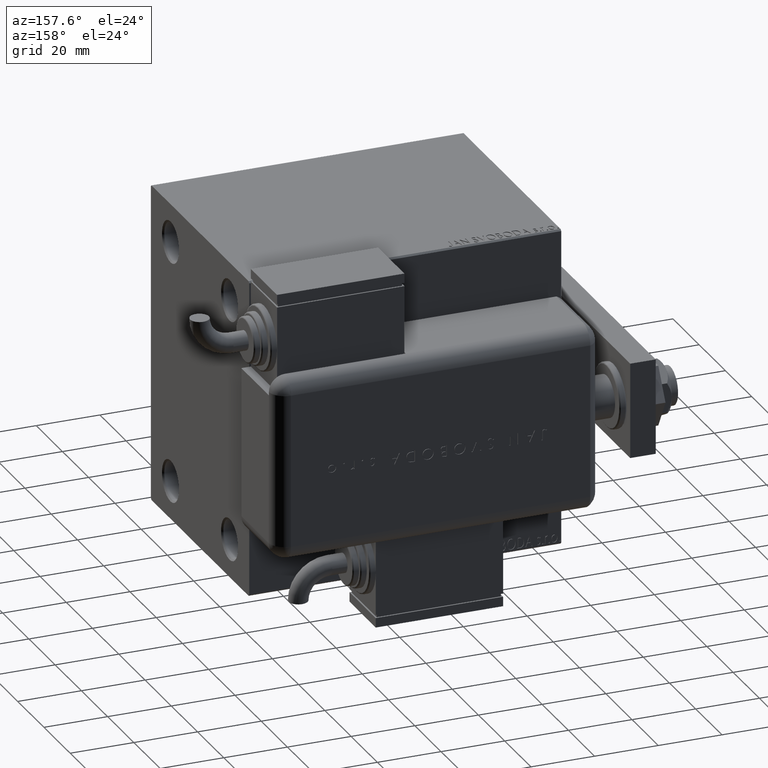
[diagram: clean part render]
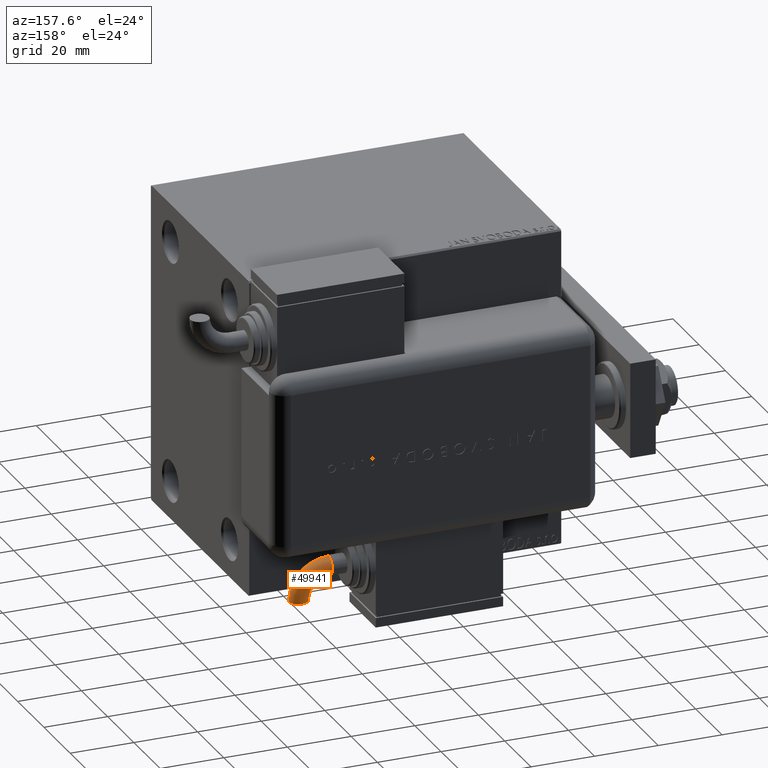
[diagram: same view with one face highlighted and labeled with its STEP entity id]
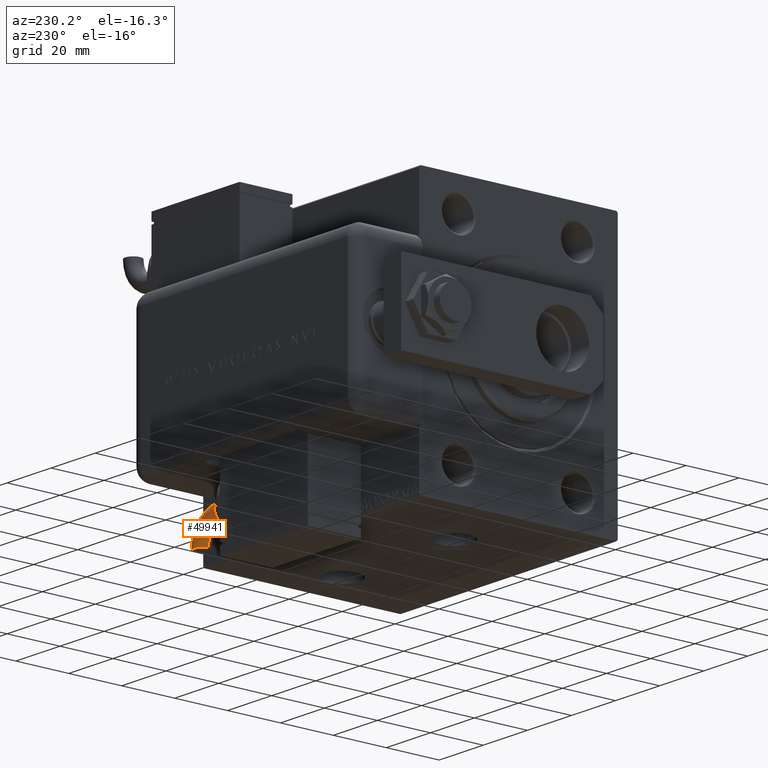
[diagram: same view with one face highlighted and labeled with its STEP entity id]
A machine part, auxiliary view. The second image highlights one B-rep face of the part: STEP entity #49941.
A second angle (auxiliary view) of the same face is appended — the face is thin or edge-on in the first view.
In plain terms, the highlighted toroidal blend (fillet) surface has major radius 9.5072 mm and minor (blend) radius 3 mm.
Its self-contained STEP definition (entity closure, byte-faithful):
#56 = DIRECTION ( 'NONE',  ( 1.000000000000000000, 0.000000000000000000, 0.000000000000000000 ) ) ;
#479 = DIRECTION ( 'NONE',  ( -7.402363701065945741E-06, 0.9999999999726024713, 0.000000000000000000 ) ) ;
#759 = DIRECTION ( 'NONE',  ( 1.000000000000000000, 1.025520576932673761E-15, 0.000000000000000000 ) ) ;
#2191 = CARTESIAN_POINT ( 'NONE',  ( -37.25922829613910636, -9.507259688020280208, -3.673940397551225891E-16 ) ) ;
#3590 = ORIENTED_EDGE ( 'NONE', *, *, #7250, .F. ) ;
#4830 = DIRECTION ( 'NONE',  ( 1.000000000000000000, 1.025520576932673761E-15, 0.000000000000000000 ) ) ;
#7250 = EDGE_CURVE ( 'NONE', #51790, #41289, #44227, .T. ) ;
#7570 = CIRCLE ( 'NONE', #41615, 2.999999999999996891 ) ;
#9820 = FACE_OUTER_BOUND ( 'NONE', #28407, .T. ) ;
#10222 = CARTESIAN_POINT ( 'NONE',  ( -30.75201677704342274, 2.081668171172168513E-14, 0.000000000000000000 ) ) ;
#11065 = CARTESIAN_POINT ( 'NONE',  ( -30.75201677704342274, -9.507211519273942812, 0.000000000000000000 ) ) ;
#13579 = AXIS2_PLACEMENT_3D ( 'NONE', #11065, #20216, #43356 ) ;
#14396 = DIRECTION ( 'NONE',  ( 1.000000000000000000, 0.000000000000000000, 0.000000000000000000 ) ) ;
#19155 = ORIENTED_EDGE ( 'NONE', *, *, #58085, .F. ) ;
#19361 = DIRECTION ( 'NONE',  ( -1.156482317317872908E-15, 1.000000000000000000, 0.000000000000000000 ) ) ;
#20216 = DIRECTION ( 'NONE',  ( 0.000000000000000000, 0.000000000000000000, 1.000000000000000000 ) ) ;
#22590 = CARTESIAN_POINT ( 'NONE',  ( -30.75201677704342629, 3.000000000000017319, 0.000000000000000000 ) ) ;
#23042 = DIRECTION ( 'NONE',  ( -0.9999999999726024713, -7.402363701169985951E-06, 0.000000000000000000 ) ) ;
#23290 = VERTEX_POINT ( 'NONE', #22590 ) ;
#24890 = TOROIDAL_SURFACE ( 'NONE', #26836, 9.507211519273964129, 2.999999999999996891 ) ;
#25276 = CARTESIAN_POINT ( 'NONE',  ( -43.25922829597471519, -9.507304102202486007, 0.000000000000000000 ) ) ;
#25947 = ORIENTED_EDGE ( 'NONE', *, *, #44403, .F. ) ;
#26836 = AXIS2_PLACEMENT_3D ( 'NONE', #38447, #47281, #14396 ) ;
#27483 = DIRECTION ( 'NONE',  ( 0.000000000000000000, 0.000000000000000000, 1.000000000000000000 ) ) ;
#28177 = CIRCLE ( 'NONE', #13579, 12.50721151927396058 ) ;
#28407 = EDGE_LOOP ( 'NONE', ( #19155, #48935, #40616, #3590, #25947 ) ) ;
#32164 = CARTESIAN_POINT ( 'NONE',  ( -30.75201677704341918, -2.999999999999976463, -3.673940397442056910E-16 ) ) ;
#33175 = DIRECTION ( 'NONE',  ( -1.156482317317872908E-15, 1.000000000000000000, 0.000000000000000000 ) ) ;
#33517 = AXIS2_PLACEMENT_3D ( 'NONE', #59468, #27483, #56 ) ;
#38447 = CARTESIAN_POINT ( 'NONE',  ( -30.75201677704342274, -9.507211519273942812, 0.000000000000000000 ) ) ;
#40616 = ORIENTED_EDGE ( 'NONE', *, *, #54631, .T. ) ;
#41289 = VERTEX_POINT ( 'NONE', #2191 ) ;
#41535 = CARTESIAN_POINT ( 'NONE',  ( -30.75201677704342274, 2.081668171172168829E-14, 2.999999999999997335 ) ) ;
#41615 = AXIS2_PLACEMENT_3D ( 'NONE', #47091, #479, #23042 ) ;
#42320 = AXIS2_PLACEMENT_3D ( 'NONE', #47487, #4830, #33175 ) ;
#43356 = DIRECTION ( 'NONE',  ( 1.000000000000000000, 0.000000000000000000, 0.000000000000000000 ) ) ;
#44227 = CIRCLE ( 'NONE', #33517, 6.507211519273966793 ) ;
#44403 = EDGE_CURVE ( 'NONE', #47073, #51790, #56926, .T. ) ;
#47073 = VERTEX_POINT ( 'NONE', #41535 ) ;
#47091 = CARTESIAN_POINT ( 'NONE',  ( -40.25922829605691078, -9.507281895111381331, 0.000000000000000000 ) ) ;
#47281 = DIRECTION ( 'NONE',  ( 0.000000000000000000, 0.000000000000000000, 1.000000000000000000 ) ) ;
#47487 = CARTESIAN_POINT ( 'NONE',  ( -30.75201677704342274, 2.081668171172168513E-14, 0.000000000000000000 ) ) ;
#48935 = ORIENTED_EDGE ( 'NONE', *, *, #59286, .T. ) ;
#49540 = CIRCLE ( 'NONE', #60212, 2.999999999999996003 ) ;
#49941 = ADVANCED_FACE ( 'NONE', ( #9820 ), #24890, .T. ) ;
#51790 = VERTEX_POINT ( 'NONE', #32164 ) ;
#52279 = VERTEX_POINT ( 'NONE', #25276 ) ;
#54631 = EDGE_CURVE ( 'NONE', #52279, #41289, #7570, .T. ) ;
#56926 = CIRCLE ( 'NONE', #42320, 2.999999999999996003 ) ;
#58085 = EDGE_CURVE ( 'NONE', #23290, #47073, #49540, .T. ) ;
#59286 = EDGE_CURVE ( 'NONE', #23290, #52279, #28177, .T. ) ;
#59468 = CARTESIAN_POINT ( 'NONE',  ( -30.75201677704342274, -9.507211519273942812, -3.673940397442055924E-16 ) ) ;
#60212 = AXIS2_PLACEMENT_3D ( 'NONE', #10222, #759, #19361 ) ;